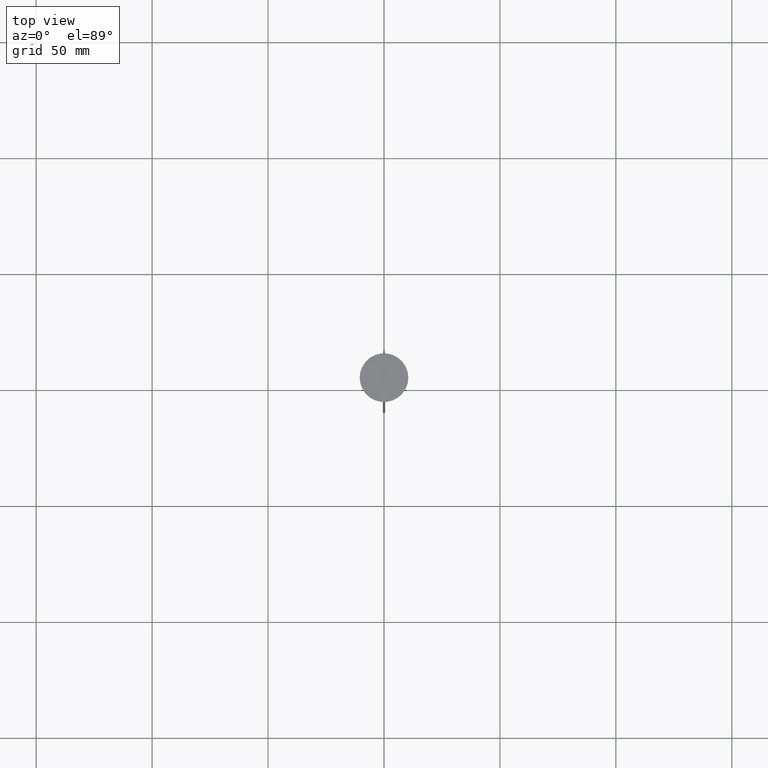
[diagram: clean part render]
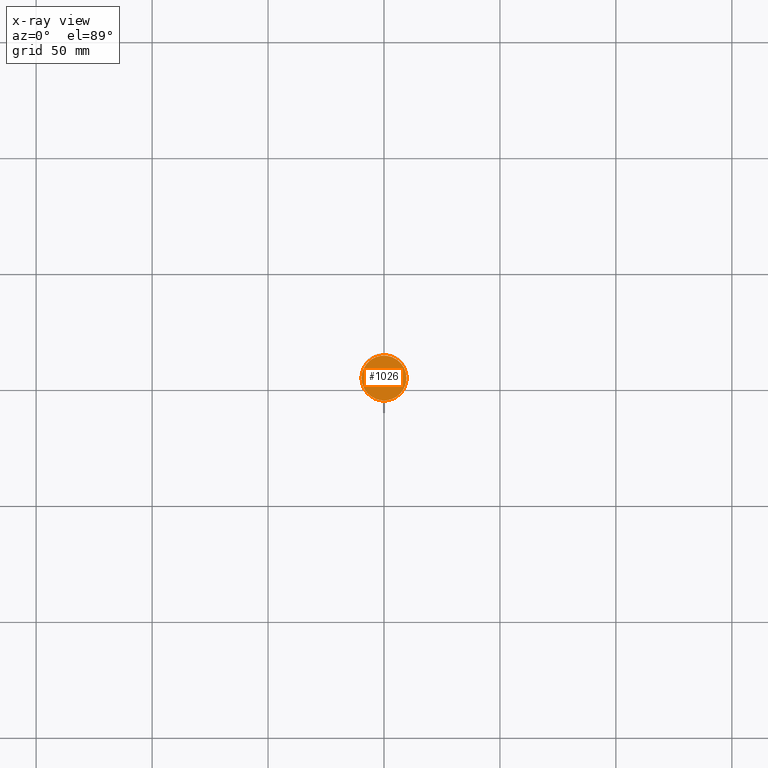
[diagram: x-ray — body ghosted, one internal face saturated and labeled with its STEP entity id]
A machine part, top view, then the same camera in x-ray: the body is ghosted and one INTERNAL B-rep face — a face not visible from any outside direction — is saturated and labeled: STEP entity #1026.
In plain terms, the highlighted planar face has unit normal (0, 0, -1).
Its self-contained STEP definition (entity closure, byte-faithful):
#152 = ORIENTED_EDGE ( 'NONE', *, *, #223, .T. ) ;
#202 = AXIS2_PLACEMENT_3D ( 'NONE', #649, #1025, #441 ) ;
#223 = EDGE_CURVE ( 'NONE', #2144, #1195, #1448, .T. ) ;
#317 = AXIS2_PLACEMENT_3D ( 'NONE', #1525, #2330, #2159 ) ;
#401 = CARTESIAN_POINT ( 'NONE',  ( 0.000000000000000000, 0.000000000000000000, -12.00000000000000000 ) ) ;
#441 = DIRECTION ( 'NONE',  ( -1.000000000000000000, 0.000000000000000000, 0.000000000000000000 ) ) ;
#543 = CIRCLE ( 'NONE', #2013, 9.700000000000002842 ) ;
#603 = CARTESIAN_POINT ( 'NONE',  ( -9.700000000000002842, 0.000000000000000000, -12.00000000000000000 ) ) ;
#649 = CARTESIAN_POINT ( 'NONE',  ( 0.000000000000000000, 0.000000000000000000, -12.00000000000000000 ) ) ;
#986 = ORIENTED_EDGE ( 'NONE', *, *, #1874, .T. ) ;
#1005 = DIRECTION ( 'NONE',  ( -1.000000000000000000, 0.000000000000000000, 0.000000000000000000 ) ) ;
#1025 = DIRECTION ( 'NONE',  ( -0.000000000000000000, -0.000000000000000000, 1.000000000000000000 ) ) ;
#1026 = ADVANCED_FACE ( 'NONE', ( #1551 ), #1350, .F. ) ;
#1190 = DIRECTION ( 'NONE',  ( -0.000000000000000000, -0.000000000000000000, 1.000000000000000000 ) ) ;
#1195 = VERTEX_POINT ( 'NONE', #603 ) ;
#1350 = PLANE ( 'NONE',  #317 ) ;
#1448 = CIRCLE ( 'NONE', #202, 9.700000000000002842 ) ;
#1525 = CARTESIAN_POINT ( 'NONE',  ( 0.000000000000000000, 0.000000000000000000, -12.00000000000000000 ) ) ;
#1532 = CARTESIAN_POINT ( 'NONE',  ( 9.700000000000002842, 1.206277097160143024E-15, -12.00000000000000000 ) ) ;
#1551 = FACE_OUTER_BOUND ( 'NONE', #2566, .T. ) ;
#1874 = EDGE_CURVE ( 'NONE', #1195, #2144, #543, .T. ) ;
#2013 = AXIS2_PLACEMENT_3D ( 'NONE', #401, #1190, #1005 ) ;
#2144 = VERTEX_POINT ( 'NONE', #1532 ) ;
#2159 = DIRECTION ( 'NONE',  ( -1.000000000000000000, 0.000000000000000000, -0.000000000000000000 ) ) ;
#2330 = DIRECTION ( 'NONE',  ( 0.000000000000000000, 0.000000000000000000, -1.000000000000000000 ) ) ;
#2566 = EDGE_LOOP ( 'NONE', ( #986, #152 ) ) ;